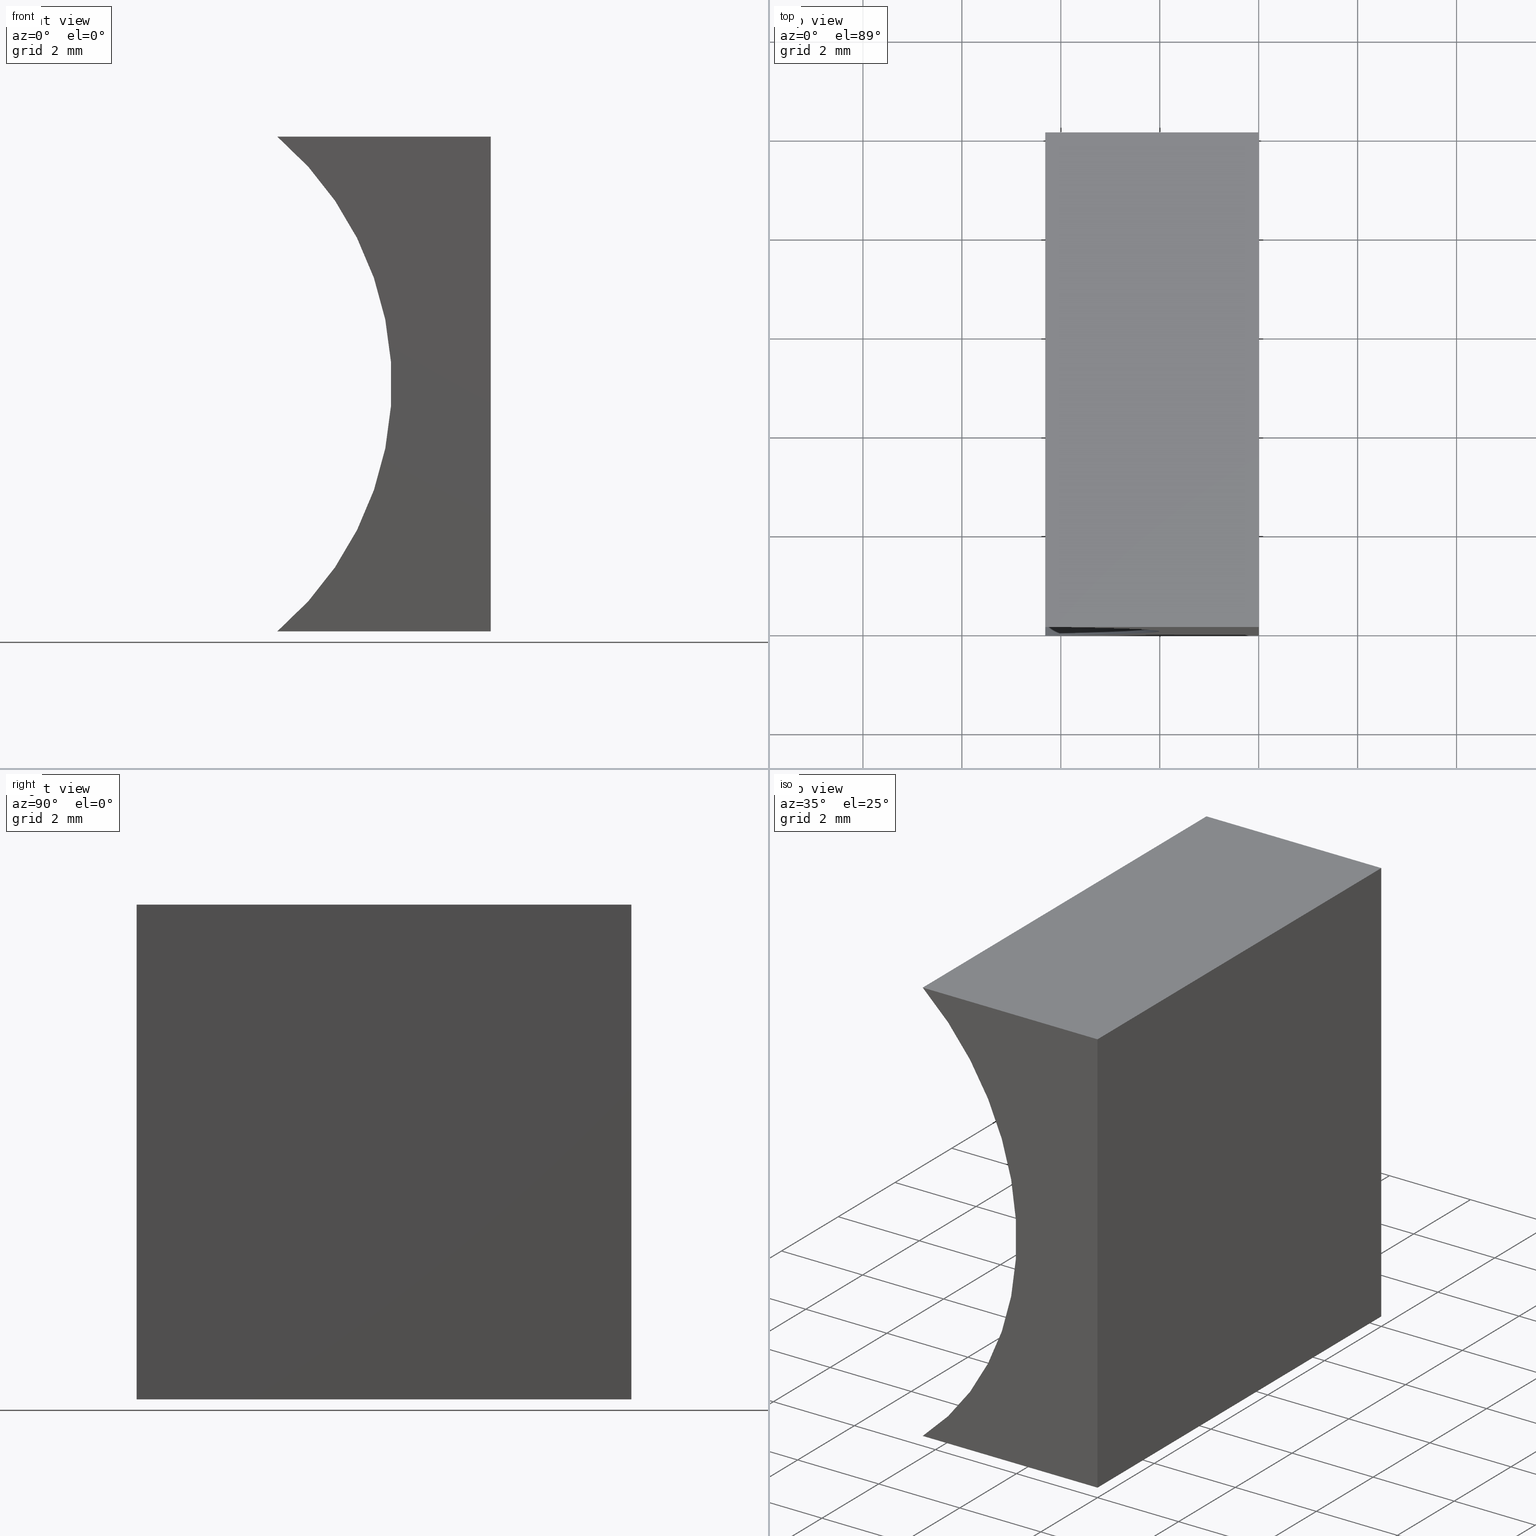
[diagram: canonical four-view strip — front | top / right | iso, engineering-drawing reading convention]
A machine part, canonical four-view strip (front | top / right | iso — engineering-drawing reading convention). The complete STEP part file that produces these views, byte-faithful:
ISO-10303-21;
HEADER;
FILE_DESCRIPTION (( 'STEP AP214' ),
    '1' );
FILE_NAME ('155335.STEP',
    '2019-06-27T03:30:16',
    ( 'user' ),
    ( '΢���й�' ),
    'SwSTEP 2.0',
    'SolidWorks 2016',
    '' );
FILE_SCHEMA (( 'AUTOMOTIVE_DESIGN' ));
ENDSEC;

DATA;
#1 = CARTESIAN_POINT ( 'NONE',  ( 0.0000000000000000000, 0.0000000000000000000, 0.0000000000000000000 ) ) ;
#2 = APPLICATION_PROTOCOL_DEFINITION ( 'draft international standard', 'automotive_design', 1998, #113 ) ;
#3 = DIRECTION ( 'NONE',  ( -0.0000000000000000000, -1.000000000000000000, -0.0000000000000000000 ) ) ;
#4 = VECTOR ( 'NONE', #28, 1000.000000000000000 ) ;
#5 = ORIENTED_EDGE ( 'NONE', *, *, #82, .F. ) ;
#6 = DIRECTION ( 'NONE',  ( -0.0000000000000000000, -1.000000000000000000, -0.0000000000000000000 ) ) ;
#7 = AXIS2_PLACEMENT_3D ( 'NONE', #118, #3, #176 ) ;
#8 = ORIENTED_EDGE ( 'NONE', *, *, #89, .T. ) ;
#9 =( NAMED_UNIT ( * ) PLANE_ANGLE_UNIT ( ) SI_UNIT ( $, .RADIAN. ) );
#10 = CARTESIAN_POINT ( 'NONE',  ( -4.313401361089090900, 10.00000000000000000, 10.00000000000000200 ) ) ;
#11 = DIRECTION ( 'NONE',  ( 0.0000000000000000000, -0.0000000000000000000, 1.000000000000000000 ) ) ;
#12 = AXIS2_PLACEMENT_3D ( 'NONE', #74, #25, #30 ) ;
#13 = DIRECTION ( 'NONE',  ( 6.123233995736766000E-017, 0.0000000000000000000, 1.000000000000000000 ) ) ;
#14 =( GEOMETRIC_REPRESENTATION_CONTEXT ( 3 ) GLOBAL_UNCERTAINTY_ASSIGNED_CONTEXT ( ( #202 ) ) GLOBAL_UNIT_ASSIGNED_CONTEXT ( ( #134, #9, #152 ) ) REPRESENTATION_CONTEXT ( 'NONE', 'WORKASPACE' ) );
#15 = CARTESIAN_POINT ( 'NONE',  ( 0.0000000000000000000, 10.00000000000000000, 0.0000000000000000000 ) ) ;
#16 = FACE_OUTER_BOUND ( 'NONE', #22, .T. ) ;
#17 = CARTESIAN_POINT ( 'NONE',  ( 0.0000000000000000000, 10.00000000000000000, 0.0000000000000000000 ) ) ;
#18 = ADVANCED_FACE ( 'NONE', ( #183 ), #55, .F. ) ;
#19 = ADVANCED_FACE ( 'NONE', ( #116 ), #59, .F. ) ;
#20 = FILL_AREA_STYLE ('',( #195 ) ) ;
#21 = CIRCLE ( 'NONE', #7, 6.559999999999999600 ) ;
#22 = EDGE_LOOP ( 'NONE', ( #133, #37, #106, #52 ) ) ;
#23 = DIRECTION ( 'NONE',  ( -0.0000000000000000000, -1.000000000000000000, -0.0000000000000000000 ) ) ;
#24 = CARTESIAN_POINT ( 'NONE',  ( -4.313401361089091800, 10.00000000000000000, -8.673617379884035500E-016 ) ) ;
#25 = DIRECTION ( 'NONE',  ( 7.740045952744788900E-017, -0.0000000000000000000, 1.000000000000000000 ) ) ;
#26 = AXIS2_PLACEMENT_3D ( 'NONE', #193, #135, #139 ) ;
#27 = ORIENTED_EDGE ( 'NONE', *, *, #82, .T. ) ;
#28 = DIRECTION ( 'NONE',  ( -6.123233995736766000E-017, -0.0000000000000000000, -1.000000000000000000 ) ) ;
#29 = ORIENTED_EDGE ( 'NONE', *, *, #170, .F. ) ;
#30 = DIRECTION ( 'NONE',  ( 1.000000000000000000, 0.0000000000000000000, -7.740045952744788900E-017 ) ) ;
#31 = CARTESIAN_POINT ( 'NONE',  ( -4.313401361089091800, 0.0000000000000000000, -8.673617379884035500E-016 ) ) ;
#32 = LINE ( 'NONE', #44, #104 ) ;
#33 = DIRECTION ( 'NONE',  ( -0.0000000000000000000, -1.000000000000000000, -0.0000000000000000000 ) ) ;
#34 =( NAMED_UNIT ( * ) PLANE_ANGLE_UNIT ( ) SI_UNIT ( $, .RADIAN. ) );
#35 = EDGE_CURVE ( 'NONE', #138, #41, #87, .T. ) ;
#36 = DIRECTION ( 'NONE',  ( 0.0000000000000000000, 0.0000000000000000000, -1.000000000000000000 ) ) ;
#37 = ORIENTED_EDGE ( 'NONE', *, *, #35, .F. ) ;
#38 = CARTESIAN_POINT ( 'NONE',  ( -4.313401361089091800, 10.00000000000000000, -8.673617379884035500E-016 ) ) ;
#39 = FACE_OUTER_BOUND ( 'NONE', #98, .T. ) ;
#40 = PLANE ( 'NONE',  #95 ) ;
#41 = VERTEX_POINT ( 'NONE', #48 ) ;
#42 = DIRECTION ( 'NONE',  ( 1.000000000000000000, -0.0000000000000000000, -4.021706608676931700E-016 ) ) ;
#43 = DIRECTION ( 'NONE',  ( -0.0000000000000000000, -1.000000000000000000, -0.0000000000000000000 ) ) ;
#44 = CARTESIAN_POINT ( 'NONE',  ( 0.0000000000000000000, 0.0000000000000000000, 0.0000000000000000000 ) ) ;
#45 = ORIENTED_EDGE ( 'NONE', *, *, #171, .F. ) ;
#46 = ORIENTED_EDGE ( 'NONE', *, *, #157, .F. ) ;
#47 = CARTESIAN_POINT ( 'NONE',  ( 6.123233995736766300E-016, 10.00000000000000000, 10.00000000000000000 ) ) ;
#48 = CARTESIAN_POINT ( 'NONE',  ( 6.123233995736766300E-016, 0.0000000000000000000, 10.00000000000000000 ) ) ;
#49 = UNCERTAINTY_MEASURE_WITH_UNIT (LENGTH_MEASURE( 1.000000000000000100E-005 ), #160, 'distance_accuracy_value', 'NONE');
#50 = EDGE_LOOP ( 'NONE', ( #73, #46, #158, #27 ) ) ;
#51 = DIRECTION ( 'NONE',  ( 1.000000000000000000, 0.0000000000000000000, 0.0000000000000000000 ) ) ;
#52 = ORIENTED_EDGE ( 'NONE', *, *, #190, .T. ) ;
#53 = LINE ( 'NONE', #86, #100 ) ;
#54 = PRODUCT_DEFINITION_FORMATION_WITH_SPECIFIED_SOURCE ( '�κ�', '', #154, .NOT_KNOWN. ) ;
#55 = PLANE ( 'NONE',  #127 ) ;
#56 = DIRECTION ( 'NONE',  ( -1.000000000000000000, 0.0000000000000000000, 7.740045952744788900E-017 ) ) ;
#57 = PRODUCT_DEFINITION_CONTEXT ( 'detailed design', #97, 'design' ) ;
#58 = PRODUCT_DEFINITION ( 'δ֪', '', #54, #57 ) ;
#59 = CYLINDRICAL_SURFACE ( 'NONE', #165, 6.559999999999999600 ) ;
#60 = ORIENTED_EDGE ( 'NONE', *, *, #190, .F. ) ;
#61 = SURFACE_SIDE_STYLE ('',( #146 ) ) ;
#62 = PRESENTATION_LAYER_ASSIGNMENT (  '', '', ( #163 ) ) ;
#63 = DIRECTION ( 'NONE',  ( -1.000000000000000000, 0.0000000000000000000, 6.123233995736766000E-017 ) ) ;
#64 = SURFACE_STYLE_FILL_AREA ( #20 ) ;
#65 =( NAMED_UNIT ( * ) SI_UNIT ( $, .STERADIAN. ) SOLID_ANGLE_UNIT ( ) );
#66 = VERTEX_POINT ( 'NONE', #72 ) ;
#67 = EDGE_LOOP ( 'NONE', ( #177, #5, #203, #200 ) ) ;
#68 = EDGE_CURVE ( 'NONE', #85, #198, #53, .T. ) ;
#69 = DIRECTION ( 'NONE',  ( -6.123233995736766000E-017, -0.0000000000000000000, -1.000000000000000000 ) ) ;
#70 = ORIENTED_EDGE ( 'NONE', *, *, #75, .T. ) ;
#71 = EDGE_CURVE ( 'NONE', #66, #138, #137, .T. ) ;
#72 = CARTESIAN_POINT ( 'NONE',  ( -4.313401361089090900, 10.00000000000000000, 10.00000000000000200 ) ) ;
#73 = ORIENTED_EDGE ( 'NONE', *, *, #170, .T. ) ;
#74 = CARTESIAN_POINT ( 'NONE',  ( 0.0000000000000000000, 10.00000000000000000, 0.0000000000000000000 ) ) ;
#75 = EDGE_CURVE ( 'NONE', #83, #159, #119, .T. ) ;
#76 = FACE_OUTER_BOUND ( 'NONE', #50, .T. ) ;
#77 = STYLED_ITEM ( 'NONE', ( #121 ), #187 ) ;
#78 = ORIENTED_EDGE ( 'NONE', *, *, #68, .T. ) ;
#79 = DIRECTION ( 'NONE',  ( 0.0000000000000000000, 1.000000000000000000, 0.0000000000000000000 ) ) ;
#80 = DIRECTION ( 'NONE',  ( -0.0000000000000000000, -1.000000000000000000, -0.0000000000000000000 ) ) ;
#81 = LINE ( 'NONE', #24, #172 ) ;
#82 = EDGE_CURVE ( 'NONE', #85, #122, #164, .T. ) ;
#83 = VERTEX_POINT ( 'NONE', #31 ) ;
#84 = CARTESIAN_POINT ( 'NONE',  ( 0.0000000000000000000, 0.0000000000000000000, 0.0000000000000000000 ) ) ;
#85 = VERTEX_POINT ( 'NONE', #186 ) ;
#86 = CARTESIAN_POINT ( 'NONE',  ( 0.0000000000000000000, 10.00000000000000000, 0.0000000000000000000 ) ) ;
#87 = LINE ( 'NONE', #136, #141 ) ;
#88 =( GEOMETRIC_REPRESENTATION_CONTEXT ( 3 ) GLOBAL_UNCERTAINTY_ASSIGNED_CONTEXT ( ( #49 ) ) GLOBAL_UNIT_ASSIGNED_CONTEXT ( ( #160, #34, #65 ) ) REPRESENTATION_CONTEXT ( 'NONE', 'WORKASPACE' ) );
#89 = EDGE_CURVE ( 'NONE', #138, #85, #93, .T. ) ;
#90 = PLANE ( 'NONE',  #91 ) ;
#91 = AXIS2_PLACEMENT_3D ( 'NONE', #148, #79, #11 ) ;
#92 = PLANE ( 'NONE',  #12 ) ;
#93 = LINE ( 'NONE', #124, #4 ) ;
#94 = FILL_AREA_STYLE ('',( #184 ) ) ;
#95 = AXIS2_PLACEMENT_3D ( 'NONE', #131, #115, #189 ) ;
#96 = UNCERTAINTY_MEASURE_WITH_UNIT (LENGTH_MEASURE( 1.000000000000000100E-005 ), #191, 'distance_accuracy_value', 'NONE');
#97 = APPLICATION_CONTEXT ( 'automotive_design' ) ;
#98 = EDGE_LOOP ( 'NONE', ( #78, #194, #128, #8 ) ) ;
#99 = DIRECTION ( 'NONE',  ( -1.000000000000000000, 0.0000000000000000000, 7.740045952744788900E-017 ) ) ;
#100 = VECTOR ( 'NONE', #56, 1000.000000000000000 ) ;
#101 = ORIENTED_EDGE ( 'NONE', *, *, #182, .F. ) ;
#102 = DIRECTION ( 'NONE',  ( 0.0000000000000000000, 0.0000000000000000000, 1.000000000000000000 ) ) ;
#103 = ADVANCED_FACE ( 'NONE', ( #16 ), #196, .F. ) ;
#104 = VECTOR ( 'NONE', #69, 1000.000000000000000 ) ;
#105 = ADVANCED_FACE ( 'NONE', ( #39 ), #40, .T. ) ;
#106 = ORIENTED_EDGE ( 'NONE', *, *, #71, .F. ) ;
#107 = VECTOR ( 'NONE', #197, 1000.000000000000000 ) ;
#108 = CARTESIAN_POINT ( 'NONE',  ( -8.560000000000000500, 10.00000000000000000, 5.000000000000000900 ) ) ;
#109 = AXIS2_PLACEMENT_3D ( 'NONE', #169, #102, #51 ) ;
#110 =( NAMED_UNIT ( * ) SI_UNIT ( $, .STERADIAN. ) SOLID_ANGLE_UNIT ( ) );
#111 = PRODUCT_CONTEXT ( 'NONE', #113, 'mechanical' ) ;
#112 = PRESENTATION_LAYER_ASSIGNMENT (  '', '', ( #77 ) ) ;
#113 = APPLICATION_CONTEXT ( 'automotive_design' ) ;
#114 = PRESENTATION_STYLE_ASSIGNMENT (( #166 ) ) ;
#115 = DIRECTION ( 'NONE',  ( 0.0000000000000000000, 1.000000000000000000, 0.0000000000000000000 ) ) ;
#116 = FACE_OUTER_BOUND ( 'NONE', #180, .T. ) ;
#117 = COLOUR_RGB ( '',1.000000000000000000, 1.000000000000000000, 1.000000000000000000 ) ;
#118 = CARTESIAN_POINT ( 'NONE',  ( -8.560000000000000500, 10.00000000000000000, 5.000000000000000900 ) ) ;
#119 = CIRCLE ( 'NONE', #145, 6.559999999999999600 ) ;
#120 = CARTESIAN_POINT ( 'NONE',  ( -8.560000000000000500, 0.0000000000000000000, 5.000000000000000900 ) ) ;
#121 = PRESENTATION_STYLE_ASSIGNMENT (( #175 ) ) ;
#122 = VERTEX_POINT ( 'NONE', #1 ) ;
#123 = APPLICATION_PROTOCOL_DEFINITION ( 'draft international standard', 'automotive_design', 1998, #97 ) ;
#124 = CARTESIAN_POINT ( 'NONE',  ( 0.0000000000000000000, 10.00000000000000000, 0.0000000000000000000 ) ) ;
#125 = PRODUCT_RELATED_PRODUCT_CATEGORY ( 'part', '', ( #154 ) ) ;
#126 = SURFACE_SIDE_STYLE ('',( #64 ) ) ;
#127 = AXIS2_PLACEMENT_3D ( 'NONE', #17, #63, #13 ) ;
#128 = ORIENTED_EDGE ( 'NONE', *, *, #71, .T. ) ;
#129 = COLOUR_RGB ( '',1.000000000000000000, 1.000000000000000000, 1.000000000000000000 ) ;
#130 = SHAPE_DEFINITION_REPRESENTATION ( #173, #187 ) ;
#131 = CARTESIAN_POINT ( 'NONE',  ( -8.560000000000000500, 10.00000000000000000, 5.000000000000000900 ) ) ;
#132 = LINE ( 'NONE', #161, #107 ) ;
#133 = ORIENTED_EDGE ( 'NONE', *, *, #192, .T. ) ;
#134 =( LENGTH_UNIT ( ) NAMED_UNIT ( * ) SI_UNIT ( .MILLI., .METRE. ) );
#135 = DIRECTION ( 'NONE',  ( -4.021706608676931700E-016, 0.0000000000000000000, -1.000000000000000000 ) ) ;
#136 = CARTESIAN_POINT ( 'NONE',  ( 6.123233995736766300E-016, 10.00000000000000000, 10.00000000000000000 ) ) ;
#137 = LINE ( 'NONE', #47, #168 ) ;
#138 = VERTEX_POINT ( 'NONE', #156 ) ;
#139 = DIRECTION ( 'NONE',  ( -1.000000000000000000, 0.0000000000000000000, 4.021706608676931700E-016 ) ) ;
#140 = MANIFOLD_SOLID_BREP ( '͹̨-����1', #153 ) ;
#141 = VECTOR ( 'NONE', #144, 1000.000000000000000 ) ;
#142 = VECTOR ( 'NONE', #43, 1000.000000000000000 ) ;
#143 = ORIENTED_EDGE ( 'NONE', *, *, #157, .T. ) ;
#144 = DIRECTION ( 'NONE',  ( -0.0000000000000000000, -1.000000000000000000, -0.0000000000000000000 ) ) ;
#145 = AXIS2_PLACEMENT_3D ( 'NONE', #120, #33, #181 ) ;
#146 = SURFACE_STYLE_FILL_AREA ( #94 ) ;
#147 = VECTOR ( 'NONE', #23, 1000.000000000000000 ) ;
#148 = CARTESIAN_POINT ( 'NONE',  ( -8.560000000000000500, 0.0000000000000000000, 5.000000000000000900 ) ) ;
#149 = ADVANCED_FACE ( 'NONE', ( #76 ), #92, .F. ) ;
#150 = ADVANCED_FACE ( 'NONE', ( #174 ), #90, .F. ) ;
#151 =( NAMED_UNIT ( * ) PLANE_ANGLE_UNIT ( ) SI_UNIT ( $, .RADIAN. ) );
#152 =( NAMED_UNIT ( * ) SI_UNIT ( $, .STERADIAN. ) SOLID_ANGLE_UNIT ( ) );
#153 = CLOSED_SHELL ( 'NONE', ( #149, #19, #103, #18, #105, #150 ) ) ;
#154 = PRODUCT ( '155335', '155335', '', ( #111 ) ) ;
#155 = MECHANICAL_DESIGN_GEOMETRIC_PRESENTATION_REPRESENTATION (  '', ( #77 ), #88 ) ;
#156 = CARTESIAN_POINT ( 'NONE',  ( 6.123233995736766300E-016, 10.00000000000000000, 10.00000000000000000 ) ) ;
#157 = EDGE_CURVE ( 'NONE', #198, #83, #81, .T. ) ;
#158 = ORIENTED_EDGE ( 'NONE', *, *, #68, .F. ) ;
#159 = VERTEX_POINT ( 'NONE', #162 ) ;
#160 =( LENGTH_UNIT ( ) NAMED_UNIT ( * ) SI_UNIT ( .MILLI., .METRE. ) );
#161 = CARTESIAN_POINT ( 'NONE',  ( 6.123233995736766300E-016, 0.0000000000000000000, 10.00000000000000000 ) ) ;
#162 = CARTESIAN_POINT ( 'NONE',  ( -4.313401361089090900, 0.0000000000000000000, 10.00000000000000200 ) ) ;
#163 = STYLED_ITEM ( 'NONE', ( #114 ), #140 ) ;
#164 = LINE ( 'NONE', #15, #147 ) ;
#165 = AXIS2_PLACEMENT_3D ( 'NONE', #108, #6, #36 ) ;
#166 = SURFACE_STYLE_USAGE ( .BOTH. , #126 ) ;
#167 = VECTOR ( 'NONE', #99, 1000.000000000000000 ) ;
#168 = VECTOR ( 'NONE', #42, 1000.000000000000000 ) ;
#169 = CARTESIAN_POINT ( 'NONE',  ( 0.0000000000000000000, 0.0000000000000000000, 0.0000000000000000000 ) ) ;
#170 = EDGE_CURVE ( 'NONE', #122, #83, #185, .T. ) ;
#171 = EDGE_CURVE ( 'NONE', #198, #66, #21, .T. ) ;
#172 = VECTOR ( 'NONE', #80, 1000.000000000000000 ) ;
#173 = PRODUCT_DEFINITION_SHAPE ( 'NONE', 'NONE',  #58 ) ;
#174 = FACE_OUTER_BOUND ( 'NONE', #188, .T. ) ;
#175 = SURFACE_STYLE_USAGE ( .BOTH. , #61 ) ;
#176 = DIRECTION ( 'NONE',  ( 0.0000000000000000000, 0.0000000000000000000, 1.000000000000000000 ) ) ;
#177 = ORIENTED_EDGE ( 'NONE', *, *, #182, .T. ) ;
#178 = MECHANICAL_DESIGN_GEOMETRIC_PRESENTATION_REPRESENTATION (  '', ( #163 ), #14 ) ;
#179 = LINE ( 'NONE', #10, #142 ) ;
#180 = EDGE_LOOP ( 'NONE', ( #70, #60, #45, #143 ) ) ;
#181 = DIRECTION ( 'NONE',  ( 0.0000000000000000000, 0.0000000000000000000, 1.000000000000000000 ) ) ;
#182 = EDGE_CURVE ( 'NONE', #41, #122, #32, .T. ) ;
#183 = FACE_OUTER_BOUND ( 'NONE', #67, .T. ) ;
#184 = FILL_AREA_STYLE_COLOUR ( '', #117 ) ;
#185 = LINE ( 'NONE', #84, #167 ) ;
#186 = CARTESIAN_POINT ( 'NONE',  ( 0.0000000000000000000, 10.00000000000000000, 0.0000000000000000000 ) ) ;
#187 = ADVANCED_BREP_SHAPE_REPRESENTATION ( '155335', ( #140, #109 ), #201 ) ;
#188 = EDGE_LOOP ( 'NONE', ( #29, #101, #204, #199 ) ) ;
#189 = DIRECTION ( 'NONE',  ( 0.0000000000000000000, -0.0000000000000000000, 1.000000000000000000 ) ) ;
#190 = EDGE_CURVE ( 'NONE', #66, #159, #179, .T. ) ;
#191 =( LENGTH_UNIT ( ) NAMED_UNIT ( * ) SI_UNIT ( .MILLI., .METRE. ) );
#192 = EDGE_CURVE ( 'NONE', #159, #41, #132, .T. ) ;
#193 = CARTESIAN_POINT ( 'NONE',  ( 6.123233995736766300E-016, 10.00000000000000000, 10.00000000000000000 ) ) ;
#194 = ORIENTED_EDGE ( 'NONE', *, *, #171, .T. ) ;
#195 = FILL_AREA_STYLE_COLOUR ( '', #129 ) ;
#196 = PLANE ( 'NONE',  #26 ) ;
#197 = DIRECTION ( 'NONE',  ( 1.000000000000000000, -0.0000000000000000000, -4.021706608676931700E-016 ) ) ;
#198 = VERTEX_POINT ( 'NONE', #38 ) ;
#199 = ORIENTED_EDGE ( 'NONE', *, *, #75, .F. ) ;
#200 = ORIENTED_EDGE ( 'NONE', *, *, #35, .T. ) ;
#201 =( GEOMETRIC_REPRESENTATION_CONTEXT ( 3 ) GLOBAL_UNCERTAINTY_ASSIGNED_CONTEXT ( ( #96 ) ) GLOBAL_UNIT_ASSIGNED_CONTEXT ( ( #191, #151, #110 ) ) REPRESENTATION_CONTEXT ( 'NONE', 'WORKASPACE' ) );
#202 = UNCERTAINTY_MEASURE_WITH_UNIT (LENGTH_MEASURE( 1.000000000000000100E-005 ), #134, 'distance_accuracy_value', 'NONE');
#203 = ORIENTED_EDGE ( 'NONE', *, *, #89, .F. ) ;
#204 = ORIENTED_EDGE ( 'NONE', *, *, #192, .F. ) ;
ENDSEC;
END-ISO-10303-21;
